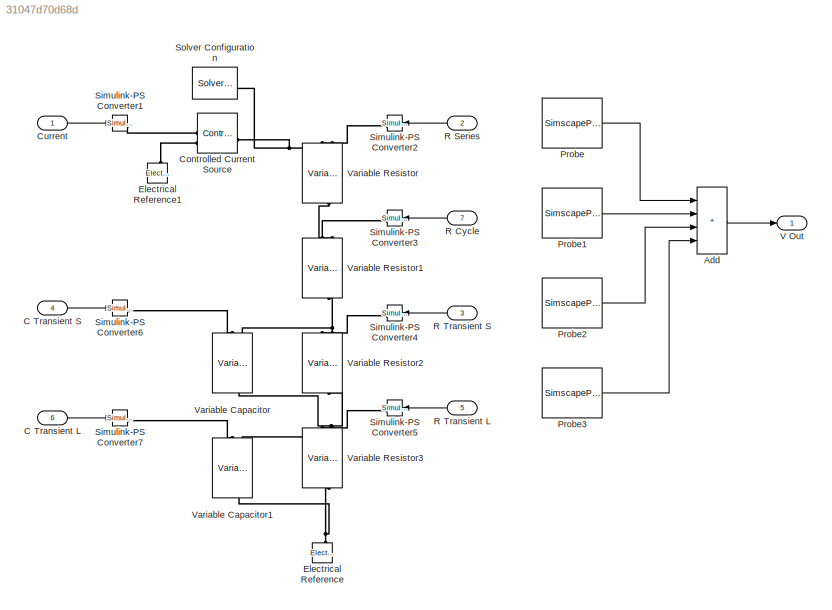
MODEL slx_31047d70d68d
KIND model
CONFIG AbsTol = auto
CONFIG EnableMultiTasking = off
CONFIG FixedStep = auto
CONFIG MaxStep = auto
CONFIG MinStep = auto
CONFIG RelTol = 1e-3
CONFIG SampleTimeConstraint = Unconstrained
CONFIG SolverName = VariableStepAuto
CONFIG StartTime = 0.0
CONFIG StopTime = 10.0
BLOCK [Sum] Add
  IconShape = rectangular
  Inputs = ++++
BLOCK [Inport] C Transient L
  NameLocation = top
  Port = 6
BLOCK [Inport] C Transient S
  NameLocation = top
  Port = 4
BLOCK [Reference] Controlled Current Source  REF=fl_lib/Electrical/Electrical Sources/Controlled Current
Source
  SourceBlock = fl_lib/Electrical/Electrical Sources/Controlled Current\nSource
  SourceType = Controlled Current\nSource
BLOCK [Inport] Current
  NameLocation = top
BLOCK [Reference] Electrical Reference  REF=fl_lib/Electrical/Electrical Elements/Electrical Reference
  NameLocation = right
  SourceBlock = fl_lib/Electrical/Electrical Elements/Electrical Reference
  SourceType = Electrical Reference
BLOCK [Reference] Electrical Reference1  REF=fl_lib/Electrical/Electrical Elements/Electrical Reference
  NameLocation = right
  SourceBlock = fl_lib/Electrical/Electrical Elements/Electrical Reference
  SourceType = Electrical Reference
BLOCK [SimscapeProbe] Probe
  BoundBlock = 54
  Variables = {v}
BLOCK [SimscapeProbe] Probe1
  BoundBlock = 64
  Variables = {v}
BLOCK [SimscapeProbe] Probe2
  BoundBlock = 65
  Variables = {v}
BLOCK [SimscapeProbe] Probe3
  BoundBlock = 66
  Variables = {v}
BLOCK [Inport] R Cycle
  NameLocation = top
  Port = 7
BLOCK [Inport] R Series
  NameLocation = top
  Port = 2
BLOCK [Inport] R Transient L
  NameLocation = top
  Port = 5
BLOCK [Inport] R Transient S
  NameLocation = top
  Port = 3
BLOCK [Reference] Simulink-PS Converter1  REF=nesl_utility/Simulink-PS
Converter
  SourceBlock = nesl_utility/Simulink-PS\nConverter
  SourceType = Simulink-PS\nConverter
BLOCK [Reference] Simulink-PS Converter2  REF=nesl_utility/Simulink-PS
Converter
  NameLocation = top
  SourceBlock = nesl_utility/Simulink-PS\nConverter
  SourceType = Simulink-PS\nConverter
BLOCK [Reference] Simulink-PS Converter3  REF=nesl_utility/Simulink-PS
Converter
  NameLocation = top
  SourceBlock = nesl_utility/Simulink-PS\nConverter
  SourceType = Simulink-PS\nConverter
BLOCK [Reference] Simulink-PS Converter4  REF=nesl_utility/Simulink-PS
Converter
  NameLocation = top
  SourceBlock = nesl_utility/Simulink-PS\nConverter
  SourceType = Simulink-PS\nConverter
BLOCK [Reference] Simulink-PS Converter5  REF=nesl_utility/Simulink-PS
Converter
  NameLocation = top
  SourceBlock = nesl_utility/Simulink-PS\nConverter
  SourceType = Simulink-PS\nConverter
BLOCK [Reference] Simulink-PS Converter6  REF=nesl_utility/Simulink-PS
Converter
  SourceBlock = nesl_utility/Simulink-PS\nConverter
  SourceType = Simulink-PS\nConverter
BLOCK [Reference] Simulink-PS Converter7  REF=nesl_utility/Simulink-PS
Converter
  SourceBlock = nesl_utility/Simulink-PS\nConverter
  SourceType = Simulink-PS\nConverter
BLOCK [Reference] Solver Configuration  REF=nesl_utility/Solver
Configuration
  NameLocation = left
  SourceBlock = nesl_utility/Solver\nConfiguration
  SourceType = Solver\nConfiguration
BLOCK [Outport] V Out
BLOCK [Reference] Variable Capacitor  REF=ee_lib/Passive/Variable Capacitor
  NameLocation = left
  SourceBlock = ee_lib/Passive/Variable Capacitor
  SourceType = Variable Capacitor
BLOCK [Reference] Variable Capacitor1  REF=ee_lib/Passive/Variable Capacitor
  NameLocation = left
  SourceBlock = ee_lib/Passive/Variable Capacitor
  SourceType = Variable Capacitor
BLOCK [Reference] Variable Resistor  REF=fl_lib/Electrical/Electrical Elements/Variable Resistor
  NameLocation = left
  SourceBlock = fl_lib/Electrical/Electrical Elements/Variable Resistor
  SourceType = Variable Resistor
BLOCK [Reference] Variable Resistor1  REF=fl_lib/Electrical/Electrical Elements/Variable Resistor
  NameLocation = left
  SourceBlock = fl_lib/Electrical/Electrical Elements/Variable Resistor
  SourceType = Variable Resistor
BLOCK [Reference] Variable Resistor2  REF=fl_lib/Electrical/Electrical Elements/Variable Resistor
  NameLocation = left
  SourceBlock = fl_lib/Electrical/Electrical Elements/Variable Resistor
  SourceType = Variable Resistor
BLOCK [Reference] Variable Resistor3  REF=fl_lib/Electrical/Electrical Elements/Variable Resistor
  NameLocation = left
  SourceBlock = fl_lib/Electrical/Electrical Elements/Variable Resistor
  SourceType = Variable Resistor
LINE Add:1 -> V Out:1
LINE C Transient L:1 -> Simulink-PS Converter7:1
LINE C Transient S:1 -> Simulink-PS Converter6:1
LINE Current:1 -> Simulink-PS Converter1:1
LINE Probe1:1 -> Add:2
LINE Probe2:1 -> Add:3
LINE Probe3:1 -> Add:4
LINE Probe:1 -> Add:1
LINE R Cycle:1 -> Simulink-PS Converter3:1
LINE R Series:1 -> Simulink-PS Converter2:1
LINE R Transient L:1 -> Simulink-PS Converter5:1
LINE R Transient S:1 -> Simulink-PS Converter4:1
PNET net1: Controlled Current Source:LConn1 -- Solver Configuration:RConn1 -- Variable Resistor:LConn2
PLINE Controlled Current Source:RConn1 -- Simulink-PS Converter1:RConn1
PLINE Controlled Current Source:RConn2 -- Electrical Reference1:LConn1
PNET net2: Electrical Reference:LConn1 -- Variable Capacitor1:RConn1 -- Variable Resistor3:RConn1
PLINE Simulink-PS Converter2:RConn1 -- Variable Resistor:LConn1
PLINE Simulink-PS Converter3:RConn1 -- Variable Resistor1:LConn1
PLINE Simulink-PS Converter4:RConn1 -- Variable Resistor2:LConn1
PLINE Simulink-PS Converter5:RConn1 -- Variable Resistor3:LConn1
PLINE Simulink-PS Converter6:RConn1 -- Variable Capacitor:LConn1
PLINE Simulink-PS Converter7:RConn1 -- Variable Capacitor1:LConn1
PNET net3: Variable Capacitor1:LConn2 -- Variable Capacitor:RConn1 -- Variable Resistor2:RConn1 -- Variable Resistor3:LConn2
PNET net4: Variable Capacitor:LConn2 -- Variable Resistor1:RConn1 -- Variable Resistor2:LConn2
PLINE Variable Resistor1:LConn2 -- Variable Resistor:RConn1
note: PNET lines group multi-terminal physical nets as a canonical sorted terminal list (undirected conserving connections); 2-terminal nets keep the pairwise PLINE form
